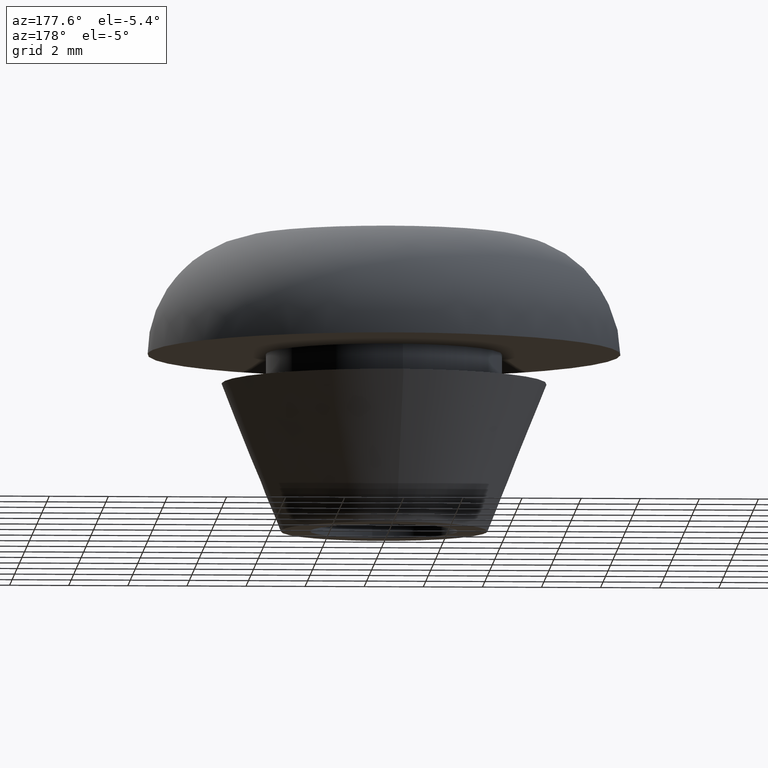
[diagram: clean part render]
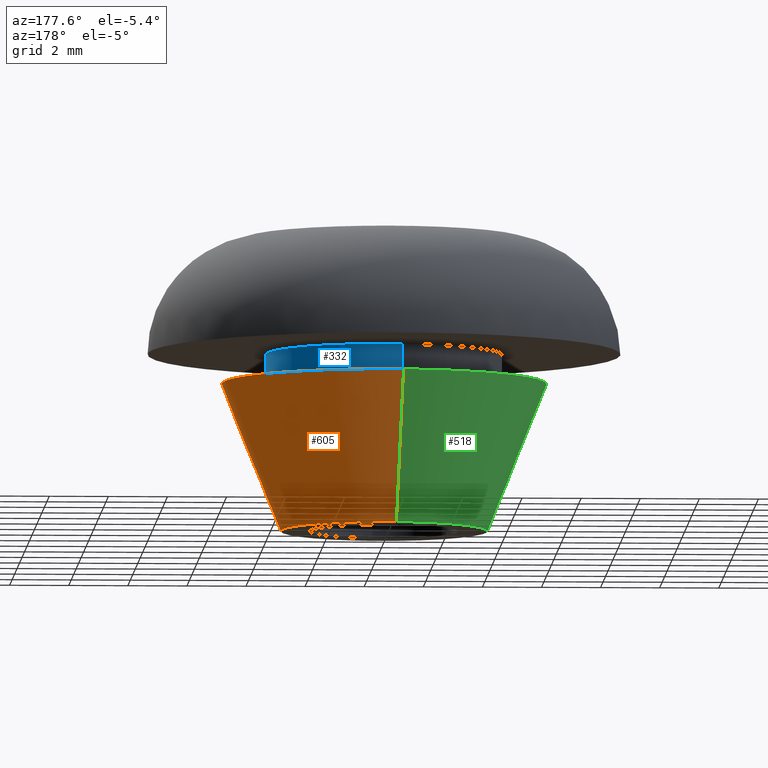
[diagram: same view with three faces highlighted in distinct colors, each labeled with its STEP entity id]
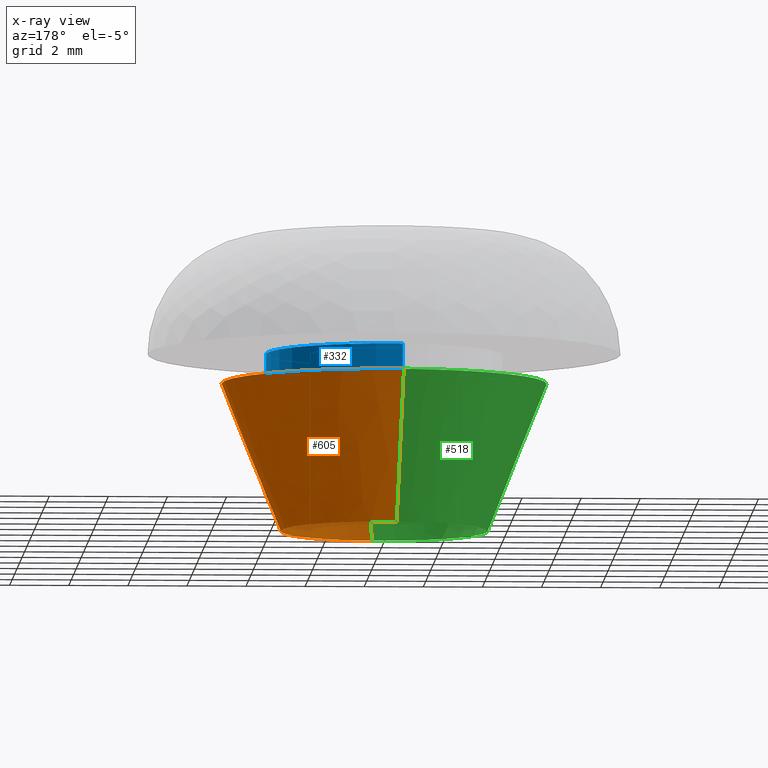
[diagram: x-ray of the same camera — body ghosted, the three highlighted faces saturated]
A machine part, auxiliary view with three faces highlighted in distinct colors.
The next image is the same camera in x-ray (body ghosted, the three faces saturated) — at least one of them is partly hidden behind the body in this view.
Their STEP definitions:

[orange] entity #605 — the highlighted face is a freeform B-spline surface patch.
#440=CARTESIAN_POINT('',(-0.274600980489155,3.489208997300468,-0.000005312372791));
#441=VERTEX_POINT('',#440);
#455=CARTESIAN_POINT('',(0.274600980489155,-3.489208997300468,-0.000005312372791));
#456=VERTEX_POINT('',#455);
#472=CARTESIAN_POINT('',(0.431523188758528,-5.483044809921816,4.999998329556744));
#473=VERTEX_POINT('',#472);
#474=CARTESIAN_POINT('',(0.274600980489155,-3.489208997300468,-0.000005312372791));
#475=CARTESIAN_POINT('',(0.431523188758528,-5.483044809921816,4.999998329556744));
#476=QUASI_UNIFORM_CURVE('',1,(#474,#475),.UNSPECIFIED.,.F.,.U.);
#477=EDGE_CURVE('',#456,#473,#476,.T.);
#496=CARTESIAN_POINT('',(-0.431523188758529,5.483044809921818,4.999998329556744));
#497=VERTEX_POINT('',#496);
#511=CARTESIAN_POINT('',(-0.274600980489155,3.489208997300468,-0.000005312372791));
#512=CARTESIAN_POINT('',(-0.431523188758529,5.483044809921818,4.999998329556744));
#513=QUASI_UNIFORM_CURVE('',1,(#511,#512),.UNSPECIFIED.,.F.,.U.);
#514=EDGE_CURVE('',#441,#497,#513,.T.);
#519=CARTESIAN_POINT('',(0.222321621183587,-3.443170993714580,-0.125000000000000));
#520=CARTESIAN_POINT('',(0.246432124522104,-3.441273455949439,-0.125000000000000));
#521=CARTESIAN_POINT('',(3.710048681640357,-3.168680921118223,-0.125000000000000));
#522=CARTESIAN_POINT('',(3.439364801379290,0.270683880261067,-0.125000000000000));
#523=CARTESIAN_POINT('',(3.168680921118223,3.710048681640357,-0.125000000000000));
#524=CARTESIAN_POINT('',(-0.294932292382487,3.437456409957549,-0.125000000000000));
#525=CARTESIAN_POINT('',(-0.319039490993339,3.435559132280112,-0.125000000000000));
#526=CARTESIAN_POINT('',(0.357728376694316,-5.540261733002340,5.128125000000000));
#527=CARTESIAN_POINT('',(0.396523574276328,-5.537208484736038,5.128124999999999));
#528=CARTESIAN_POINT('',(5.969683404045228,-5.098591293726822,5.128125000000001));
#529=CARTESIAN_POINT('',(5.534137348886025,0.435546055159203,5.128125000000001));
#530=CARTESIAN_POINT('',(5.098591293726822,5.969683404045228,5.128125000000001));
#531=CARTESIAN_POINT('',(-0.474563155967617,5.531066636457058,5.128125000000003));
#532=CARTESIAN_POINT('',(-0.513353036051238,5.528013806686950,5.128124999999999));
#540=(BOUNDED_SURFACE()B_SPLINE_SURFACE(2,1,((#519,#526),(#520,#527),(#521,#528),(#522,#529),(#523,#530),(#524,#531),(#525,#532)),.UNSPECIFIED.,.F.,.F.,.U.)B_SPLINE_SURFACE_WITH_KNOTS((3,1,2,1,3),(2,2),(0.0,0.091986763705193,9.289598916199767,18.487211068694339,18.579185112933470),(0.0,5.657865924875689),.UNSPECIFIED.)GEOMETRIC_REPRESENTATION_ITEM()RATIONAL_B_SPLINE_SURFACE(((1.005858542165760,1.005858542165760),(1.002929271082880,1.002929271082880),(0.707106781186548,0.707106781186548),(1.0,1.0),(0.707106781186548,0.707106781186548),(1.002928866038038,1.002928866038038),(1.005857732076077,1.005857732076077)))REPRESENTATION_ITEM('')SURFACE());
#541=CARTESIAN_POINT('',(3.500000000000000,0.0,0.0));
#542=VERTEX_POINT('',#541);
#543=CARTESIAN_POINT('',(-0.274600980489155,3.489208997300468,-0.000005312372791));
#544=CARTESIAN_POINT('',(-0.137512353718484,3.499997920065322,-0.000005215903538));
#545=CARTESIAN_POINT('',(0.000000160415872,3.499997961680607,-0.000005111543859));
#546=CARTESIAN_POINT('',(3.500000077056623,3.499999020882365,-0.000002455357463));
#547=CARTESIAN_POINT('',(3.500000000000000,0.0,0.0));
#555=(BOUNDED_CURVE()B_SPLINE_CURVE(2,(#543,#544,#545,#546,#547),.UNSPECIFIED.,.F.,.U.)B_SPLINE_CURVE_WITH_KNOTS((3,2,3),(0.236331580075702,0.250000000000000,0.500000000000000),.UNSPECIFIED.)CURVE()GEOMETRIC_REPRESENTATION_ITEM()RATIONAL_B_SPLINE_CURVE((0.969723939348634,0.983986449969114,1.0,0.707106781186547,1.0))REPRESENTATION_ITEM(''));
#556=EDGE_CURVE('',#441,#542,#555,.T.);
#557=ORIENTED_EDGE('',*,*,#556,.F.);
#558=ORIENTED_EDGE('',*,*,#514,.T.);
#559=CARTESIAN_POINT('',(5.500000000000000,0.0,5.0));
#560=VERTEX_POINT('',#559);
#561=CARTESIAN_POINT('',(-0.431523188758529,5.483044809921819,4.999998329556744));
#562=CARTESIAN_POINT('',(-0.216094640267148,5.499999345978612,4.999998359891378));
#563=CARTESIAN_POINT('',(0.000000050442510,5.499999359064479,4.999998392707188));
#564=CARTESIAN_POINT('',(5.500000024230313,5.499999692123400,4.999999227928816));
#565=CARTESIAN_POINT('',(5.500000000000000,0.0,5.0));
#573=(BOUNDED_CURVE()B_SPLINE_CURVE(2,(#561,#562,#563,#564,#565),.UNSPECIFIED.,.F.,.U.)B_SPLINE_CURVE_WITH_KNOTS((3,2,3),(0.236331356449855,0.250000000000000,0.500000000000000),.UNSPECIFIED.)CURVE()GEOMETRIC_REPRESENTATION_ITEM()RATIONAL_B_SPLINE_CURVE((0.969723472657849,0.983986187975137,1.0,0.707106781186548,1.0))REPRESENTATION_ITEM(''));
#574=EDGE_CURVE('',#497,#560,#573,.T.);
#575=ORIENTED_EDGE('',*,*,#574,.T.);
#576=CARTESIAN_POINT('',(5.500000000000000,0.0,5.0));
#577=CARTESIAN_POINT('',(5.499999973787802,-5.084149031616582,4.999999164778372));
#578=CARTESIAN_POINT('',(0.431523188758528,-5.483044809921816,4.999998329556744));
#586=(BOUNDED_CURVE()B_SPLINE_CURVE(2,(#576,#577,#578),.UNSPECIFIED.,.F.,.U.)B_SPLINE_CURVE_WITH_KNOTS((3,3),(0.500000000000000,0.736331356449855),.UNSPECIFIED.)CURVE()GEOMETRIC_REPRESENTATION_ITEM()RATIONAL_B_SPLINE_CURVE((1.0,0.723120593211411,0.969723472657849))REPRESENTATION_ITEM(''));
#587=EDGE_CURVE('',#560,#473,#586,.T.);
#588=ORIENTED_EDGE('',*,*,#587,.T.);
#589=ORIENTED_EDGE('',*,*,#477,.F.);
#590=CARTESIAN_POINT('',(3.500000000000000,0.0,0.0));
#591=CARTESIAN_POINT('',(3.499999916640751,-3.235370951957147,-0.000002656186396));
#592=CARTESIAN_POINT('',(0.274600980489156,-3.489208997300468,-0.000005312372791));
#600=(BOUNDED_CURVE()B_SPLINE_CURVE(2,(#590,#591,#592),.UNSPECIFIED.,.F.,.U.)B_SPLINE_CURVE_WITH_KNOTS((3,3),(0.500000000000000,0.736331580075702),.UNSPECIFIED.)CURVE()GEOMETRIC_REPRESENTATION_ITEM()RATIONAL_B_SPLINE_CURVE((1.0,0.723120331217434,0.969723939348634))REPRESENTATION_ITEM(''));
#601=EDGE_CURVE('',#542,#456,#600,.T.);
#602=ORIENTED_EDGE('',*,*,#601,.F.);
#603=EDGE_LOOP('',(#557,#558,#575,#588,#589,#602));
#604=FACE_OUTER_BOUND('',#603,.T.);
#605=ADVANCED_FACE('',(#604),#540,.T.);

[blue] entity #332 — the highlighted face is a freeform B-spline surface patch.
#230=CARTESIAN_POINT('',(-0.472136938627034,3.972038105454666,6.025000000000001));
#231=CARTESIAN_POINT('',(-0.358458914551911,3.985550461794422,6.025000000000001));
#232=CARTESIAN_POINT('',(-0.244194158139428,3.992539193687467,6.025000000000001));
#233=CARTESIAN_POINT('',(3.748345035548039,4.236733351826894,6.025000000000001));
#234=CARTESIAN_POINT('',(3.992539193687467,0.244194158139428,6.025000000000001));
#235=CARTESIAN_POINT('',(4.236733351826894,-3.748345035548039,6.025000000000001));
#236=CARTESIAN_POINT('',(0.244194158139428,-3.992539193687467,6.025000000000001));
#237=CARTESIAN_POINT('',(-0.472136938627034,3.972038105454666,4.974374999999999));
#238=CARTESIAN_POINT('',(-0.358458914551911,3.985550461794422,4.974374999999999));
#239=CARTESIAN_POINT('',(-0.244194158139428,3.992539193687467,4.974374999999999));
#240=CARTESIAN_POINT('',(3.748345035548039,4.236733351826894,4.974374999999999));
#241=CARTESIAN_POINT('',(3.992539193687467,0.244194158139428,4.974374999999999));
#242=CARTESIAN_POINT('',(4.236733351826894,-3.748345035548039,4.974374999999999));
#243=CARTESIAN_POINT('',(0.244194158139428,-3.992539193687467,4.974374999999999));
#251=(BOUNDED_SURFACE()B_SPLINE_SURFACE(2,1,((#230,#237),(#231,#238),(#232,#239),(#233,#240),(#234,#241),(#235,#242),(#236,#243)),.UNSPECIFIED.,.F.,.F.,.U.)B_SPLINE_SURFACE_WITH_KNOTS((3,2,2,3),(2,2),(0.0,0.265096679918781,6.892513677888299,13.519930675857820),(0.0,1.0),.UNSPECIFIED.)GEOMETRIC_REPRESENTATION_ITEM()RATIONAL_B_SPLINE_SURFACE(((0.977505800795127,0.977505800795127),(0.988284271247462,0.988284271247462),(1.0,1.0),(0.707106781186548,0.707106781186548),(1.0,1.0),(0.707106781186548,0.707106781186548),(1.0,1.0)))REPRESENTATION_ITEM('')SURFACE());
#252=CARTESIAN_POINT('',(-0.472135276174555,3.972038303061637,5.999999999999973));
#253=VERTEX_POINT('',#252);
#254=CARTESIAN_POINT('',(4.0,0.0,6.0));
#255=VERTEX_POINT('',#254);
#256=CARTESIAN_POINT('',(-0.472135276174555,3.972038303061638,5.999999999999973));
#257=CARTESIAN_POINT('',(-0.236895638593835,4.0,6.0));
#258=CARTESIAN_POINT('',(0.0,4.0,6.0));
#259=CARTESIAN_POINT('',(4.000000000000000,4.000000000000000,6.0));
#260=CARTESIAN_POINT('',(4.0,0.0,6.0));
#268=(BOUNDED_CURVE()B_SPLINE_CURVE(2,(#256,#257,#258,#259,#260),.UNSPECIFIED.,.F.,.U.)B_SPLINE_CURVE_WITH_KNOTS((3,2,3),(0.229562544250081,0.250000000000000,0.500000000000000),.UNSPECIFIED.)CURVE()GEOMETRIC_REPRESENTATION_ITEM()RATIONAL_B_SPLINE_CURVE((0.956026892830324,0.976056031204195,1.0,0.707106781186548,1.0))REPRESENTATION_ITEM(''));
#269=EDGE_CURVE('',#253,#255,#268,.T.);
#270=ORIENTED_EDGE('',*,*,#269,.T.);
#271=CARTESIAN_POINT('',(0.244191507870781,-3.992539355783076,6.000000000000052));
#272=VERTEX_POINT('',#271);
#273=CARTESIAN_POINT('',(4.0,0.0,6.0));
#274=CARTESIAN_POINT('',(4.000000000000000,-3.762826770073696,6.0));
#275=CARTESIAN_POINT('',(0.244191507870781,-3.992539355783075,6.000000000000052));
#283=(BOUNDED_CURVE()B_SPLINE_CURVE(2,(#273,#274,#275),.UNSPECIFIED.,.F.,.U.)B_SPLINE_CURVE_WITH_KNOTS((3,3),(0.500000000000000,0.739333076779450),.UNSPECIFIED.)CURVE()GEOMETRIC_REPRESENTATION_ITEM()RATIONAL_B_SPLINE_CURVE((1.0,0.719603859094159,0.976072287148952))REPRESENTATION_ITEM(''));
#284=EDGE_CURVE('',#255,#272,#283,.T.);
#285=ORIENTED_EDGE('',*,*,#284,.T.);
#286=CARTESIAN_POINT('',(0.244191539836600,-3.992539353828005,5.0));
#287=VERTEX_POINT('',#286);
#288=CARTESIAN_POINT('',(0.244191507870781,-3.992539355783076,6.000000000000052));
#289=CARTESIAN_POINT('',(0.244191539836600,-3.992539353828005,5.0));
#290=QUASI_UNIFORM_CURVE('',1,(#288,#289),.UNSPECIFIED.,.F.,.U.);
#291=EDGE_CURVE('',#272,#287,#290,.T.);
#292=ORIENTED_EDGE('',*,*,#291,.T.);
#293=CARTESIAN_POINT('',(4.0,0.0,5.0));
#294=VERTEX_POINT('',#293);
#295=CARTESIAN_POINT('',(4.0,0.0,5.0));
#296=CARTESIAN_POINT('',(4.0,-3.762826739890751,5.000000000000001));
#297=CARTESIAN_POINT('',(0.244191539836600,-3.992539353828005,5.0));
#305=(BOUNDED_CURVE()B_SPLINE_CURVE(2,(#295,#296,#297),.UNSPECIFIED.,.F.,.U.)B_SPLINE_CURVE_WITH_KNOTS((3,3),(0.500000000000000,0.739333075397974),.UNSPECIFIED.)CURVE()GEOMETRIC_REPRESENTATION_ITEM()RATIONAL_B_SPLINE_CURVE((1.0,0.719603860712659,0.976072284188181))REPRESENTATION_ITEM(''));
#306=EDGE_CURVE('',#294,#287,#305,.T.);
#307=ORIENTED_EDGE('',*,*,#306,.F.);
#308=CARTESIAN_POINT('',(-0.472135296181069,3.972038300683576,5.0));
#309=VERTEX_POINT('',#308);
#310=CARTESIAN_POINT('',(-0.472135296181069,3.972038300683576,5.0));
#311=CARTESIAN_POINT('',(-0.236895648702844,4.000000000000001,5.0));
#312=CARTESIAN_POINT('',(0.0,4.0,5.0));
#313=CARTESIAN_POINT('',(4.000000000000000,4.000000000000000,5.000000000000001));
#314=CARTESIAN_POINT('',(4.0,0.0,5.0));
#322=(BOUNDED_CURVE()B_SPLINE_CURVE(2,(#310,#311,#312,#313,#314),.UNSPECIFIED.,.F.,.U.)B_SPLINE_CURVE_WITH_KNOTS((3,2,3),(0.229562543398839,0.250000000000000,0.500000000000000),.UNSPECIFIED.)CURVE()GEOMETRIC_REPRESENTATION_ITEM()RATIONAL_B_SPLINE_CURVE((0.956026891161853,0.976056030206903,1.0,0.707106781186548,1.0))REPRESENTATION_ITEM(''));
#323=EDGE_CURVE('',#309,#294,#322,.T.);
#324=ORIENTED_EDGE('',*,*,#323,.F.);
#325=CARTESIAN_POINT('',(-0.472135276174555,3.972038303061637,5.999999999999973));
#326=CARTESIAN_POINT('',(-0.472135296181069,3.972038300683576,5.0));
#327=QUASI_UNIFORM_CURVE('',1,(#325,#326),.UNSPECIFIED.,.F.,.U.);
#328=EDGE_CURVE('',#253,#309,#327,.T.);
#329=ORIENTED_EDGE('',*,*,#328,.F.);
#330=EDGE_LOOP('',(#270,#285,#292,#307,#324,#329));
#331=FACE_OUTER_BOUND('',#330,.T.);
#332=ADVANCED_FACE('',(#331),#251,.T.);

[green] entity #518 — the highlighted face is a freeform B-spline surface patch.
#416=CARTESIAN_POINT('',(-0.222321621183772,3.443170993714569,-0.125000000000000));
#417=CARTESIAN_POINT('',(-0.246432124522197,3.441273455949432,-0.125000000000000));
#418=CARTESIAN_POINT('',(-3.710048681640357,3.168680921118223,-0.125000000000000));
#419=CARTESIAN_POINT('',(-3.439364801379290,-0.270683880261067,-0.125000000000000));
#420=CARTESIAN_POINT('',(-3.168680921118223,-3.710048681640357,-0.125000000000000));
#421=CARTESIAN_POINT('',(0.294932292382481,-3.437456409957548,-0.125000000000000));
#422=CARTESIAN_POINT('',(0.319039490993328,-3.435559132280113,-0.125000000000000));
#423=CARTESIAN_POINT('',(-0.357728376694613,5.540261733002319,5.128125000000003));
#424=CARTESIAN_POINT('',(-0.396523574276477,5.537208484736025,5.128124999999998));
#425=CARTESIAN_POINT('',(-5.969683404045228,5.098591293726822,5.128125000000001));
#426=CARTESIAN_POINT('',(-5.534137348886025,-0.435546055159203,5.128125000000001));
#427=CARTESIAN_POINT('',(-5.098591293726822,-5.969683404045228,5.128125000000001));
#428=CARTESIAN_POINT('',(0.474563155967608,-5.531066636457054,5.128125000000000));
#429=CARTESIAN_POINT('',(0.513353036051220,-5.528013806686950,5.128124999999999));
#437=(BOUNDED_SURFACE()B_SPLINE_SURFACE(2,1,((#416,#423),(#417,#424),(#418,#425),(#419,#426),(#420,#427),(#421,#428),(#422,#429)),.UNSPECIFIED.,.F.,.F.,.U.)B_SPLINE_SURFACE_WITH_KNOTS((3,1,2,1,3),(2,2),(0.0,0.091986763704840,9.289598916199411,18.487211068693981,18.579185112933100),(0.0,5.657865924875689),.UNSPECIFIED.)GEOMETRIC_REPRESENTATION_ITEM()RATIONAL_B_SPLINE_SURFACE(((1.005858542165737,1.005858542165737),(1.002929271082869,1.002929271082869),(0.707106781186548,0.707106781186548),(1.0,1.0),(0.707106781186548,0.707106781186548),(1.002928866038038,1.002928866038038),(1.005857732076076,1.005857732076076)))REPRESENTATION_ITEM('')SURFACE());
#438=CARTESIAN_POINT('',(-3.500000000000000,0.0,0.0));
#439=VERTEX_POINT('',#438);
#440=CARTESIAN_POINT('',(-0.274600980489155,3.489208997300468,-0.000005312372791));
#441=VERTEX_POINT('',#440);
#442=CARTESIAN_POINT('',(-3.500000000000000,0.0,0.0));
#443=CARTESIAN_POINT('',(-3.499999916640751,3.235370951957149,-0.000002656186396));
#444=CARTESIAN_POINT('',(-0.274600980489155,3.489208997300468,-0.000005312372791));
#452=(BOUNDED_CURVE()B_SPLINE_CURVE(2,(#442,#443,#444),.UNSPECIFIED.,.F.,.U.)B_SPLINE_CURVE_WITH_KNOTS((3,3),(0.0,0.236331580075702),.UNSPECIFIED.)CURVE()GEOMETRIC_REPRESENTATION_ITEM()RATIONAL_B_SPLINE_CURVE((1.0,0.723120331217434,0.969723939348634))REPRESENTATION_ITEM(''));
#453=EDGE_CURVE('',#439,#441,#452,.T.);
#454=ORIENTED_EDGE('',*,*,#453,.F.);
#455=CARTESIAN_POINT('',(0.274600980489155,-3.489208997300468,-0.000005312372791));
#456=VERTEX_POINT('',#455);
#457=CARTESIAN_POINT('',(0.274600980489156,-3.489208997300468,-0.000005312372791));
#458=CARTESIAN_POINT('',(0.137512353718483,-3.499997920065321,-0.000005215903538));
#459=CARTESIAN_POINT('',(-0.000000160415873,-3.499997961680607,-0.000005111543859));
#460=CARTESIAN_POINT('',(-3.500000077056623,-3.499999020882365,-0.000002455357463));
#461=CARTESIAN_POINT('',(-3.500000000000000,0.0,0.0));
#469=(BOUNDED_CURVE()B_SPLINE_CURVE(2,(#457,#458,#459,#460,#461),.UNSPECIFIED.,.F.,.U.)B_SPLINE_CURVE_WITH_KNOTS((3,2,3),(0.736331580075702,0.750000000000000,1.0),.UNSPECIFIED.)CURVE()GEOMETRIC_REPRESENTATION_ITEM()RATIONAL_B_SPLINE_CURVE((0.969723939348634,0.983986449969113,1.0,0.707106781186547,1.0))REPRESENTATION_ITEM(''));
#470=EDGE_CURVE('',#456,#439,#469,.T.);
#471=ORIENTED_EDGE('',*,*,#470,.F.);
#472=CARTESIAN_POINT('',(0.431523188758528,-5.483044809921816,4.999998329556744));
#473=VERTEX_POINT('',#472);
#474=CARTESIAN_POINT('',(0.274600980489155,-3.489208997300468,-0.000005312372791));
#475=CARTESIAN_POINT('',(0.431523188758528,-5.483044809921816,4.999998329556744));
#476=QUASI_UNIFORM_CURVE('',1,(#474,#475),.UNSPECIFIED.,.F.,.U.);
#477=EDGE_CURVE('',#456,#473,#476,.T.);
#478=ORIENTED_EDGE('',*,*,#477,.T.);
#479=CARTESIAN_POINT('',(-5.500000000000000,0.0,5.0));
#480=VERTEX_POINT('',#479);
#481=CARTESIAN_POINT('',(0.431523188758528,-5.483044809921816,4.999998329556744));
#482=CARTESIAN_POINT('',(0.216094640267148,-5.499999345978611,4.999998359891379));
#483=CARTESIAN_POINT('',(-0.000000050442510,-5.499999359064478,4.999998392707190));
#484=CARTESIAN_POINT('',(-5.500000024230313,-5.499999692123399,4.999999227928817));
#485=CARTESIAN_POINT('',(-5.500000000000000,0.0,5.0));
#493=(BOUNDED_CURVE()B_SPLINE_CURVE(2,(#481,#482,#483,#484,#485),.UNSPECIFIED.,.F.,.U.)B_SPLINE_CURVE_WITH_KNOTS((3,2,3),(0.736331356449855,0.750000000000000,1.0),.UNSPECIFIED.)CURVE()GEOMETRIC_REPRESENTATION_ITEM()RATIONAL_B_SPLINE_CURVE((0.969723472657849,0.983986187975137,1.0,0.707106781186548,1.0))REPRESENTATION_ITEM(''));
#494=EDGE_CURVE('',#473,#480,#493,.T.);
#495=ORIENTED_EDGE('',*,*,#494,.T.);
#496=CARTESIAN_POINT('',(-0.431523188758529,5.483044809921818,4.999998329556744));
#497=VERTEX_POINT('',#496);
#498=CARTESIAN_POINT('',(-5.500000000000000,0.0,5.0));
#499=CARTESIAN_POINT('',(-5.499999973787804,5.084149031616583,4.999999164778371));
#500=CARTESIAN_POINT('',(-0.431523188758529,5.483044809921819,4.999998329556744));
#508=(BOUNDED_CURVE()B_SPLINE_CURVE(2,(#498,#499,#500),.UNSPECIFIED.,.F.,.U.)B_SPLINE_CURVE_WITH_KNOTS((3,3),(0.0,0.236331356449855),.UNSPECIFIED.)CURVE()GEOMETRIC_REPRESENTATION_ITEM()RATIONAL_B_SPLINE_CURVE((1.0,0.723120593211411,0.969723472657849))REPRESENTATION_ITEM(''));
#509=EDGE_CURVE('',#480,#497,#508,.T.);
#510=ORIENTED_EDGE('',*,*,#509,.T.);
#511=CARTESIAN_POINT('',(-0.274600980489155,3.489208997300468,-0.000005312372791));
#512=CARTESIAN_POINT('',(-0.431523188758529,5.483044809921818,4.999998329556744));
#513=QUASI_UNIFORM_CURVE('',1,(#511,#512),.UNSPECIFIED.,.F.,.U.);
#514=EDGE_CURVE('',#441,#497,#513,.T.);
#515=ORIENTED_EDGE('',*,*,#514,.F.);
#516=EDGE_LOOP('',(#454,#471,#478,#495,#510,#515));
#517=FACE_OUTER_BOUND('',#516,.T.);
#518=ADVANCED_FACE('',(#517),#437,.T.);